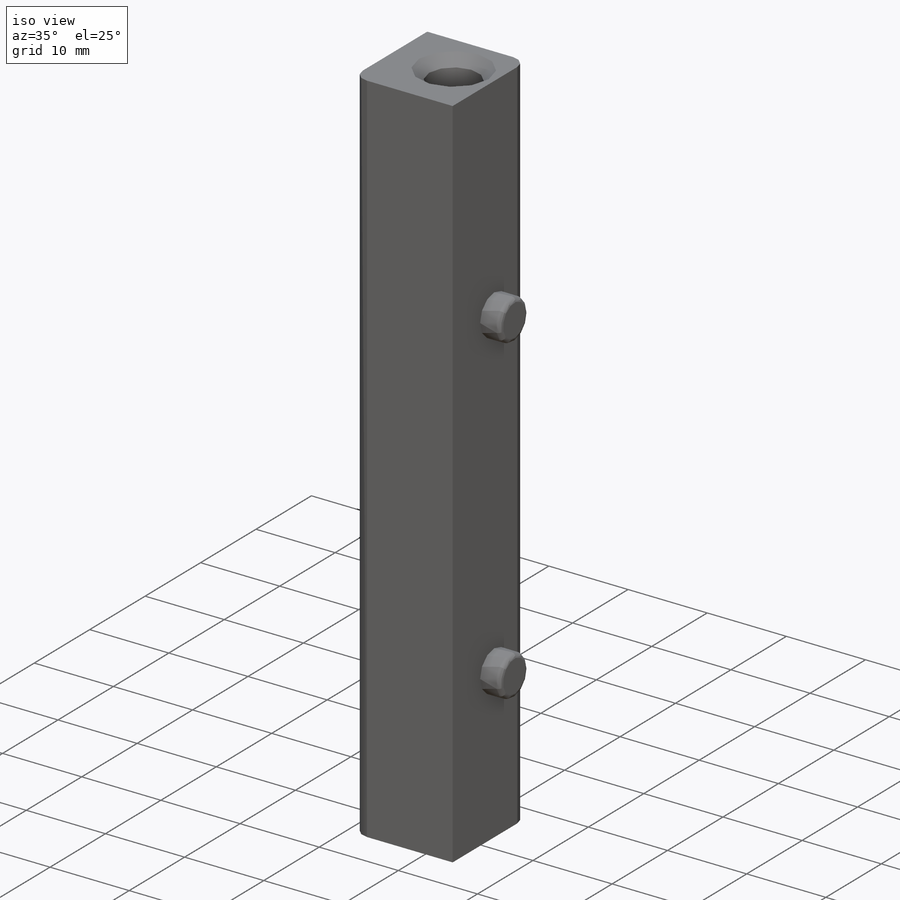
[diagram: iso view]
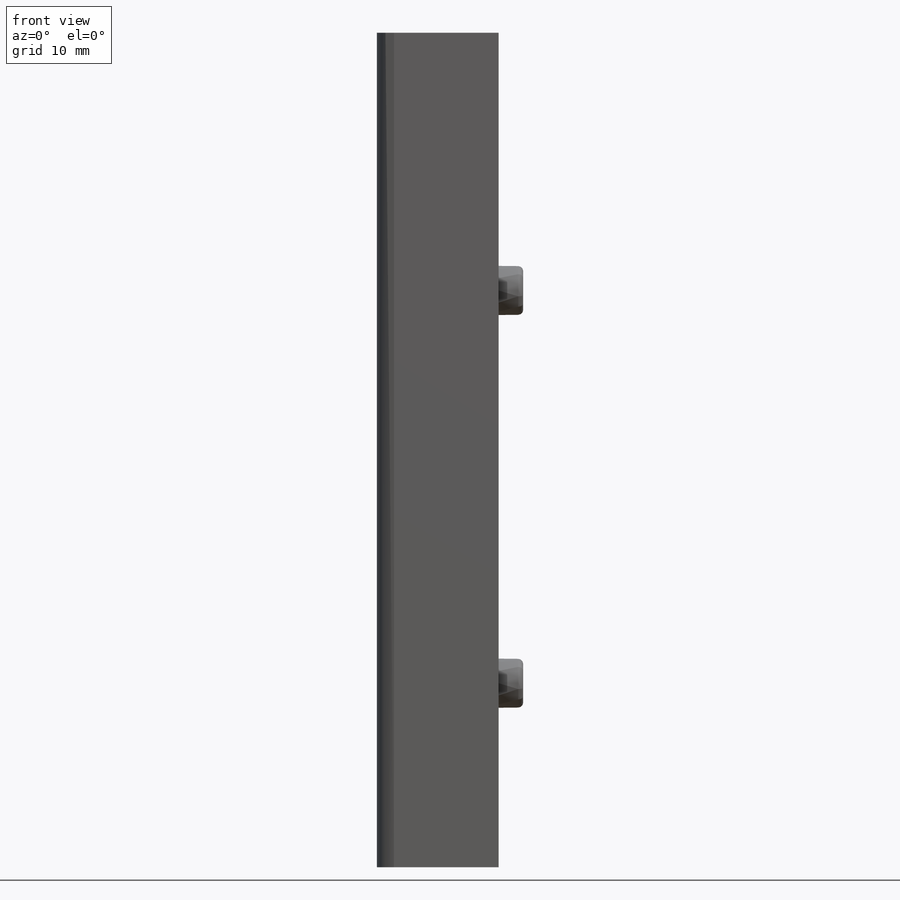
[diagram: front view]
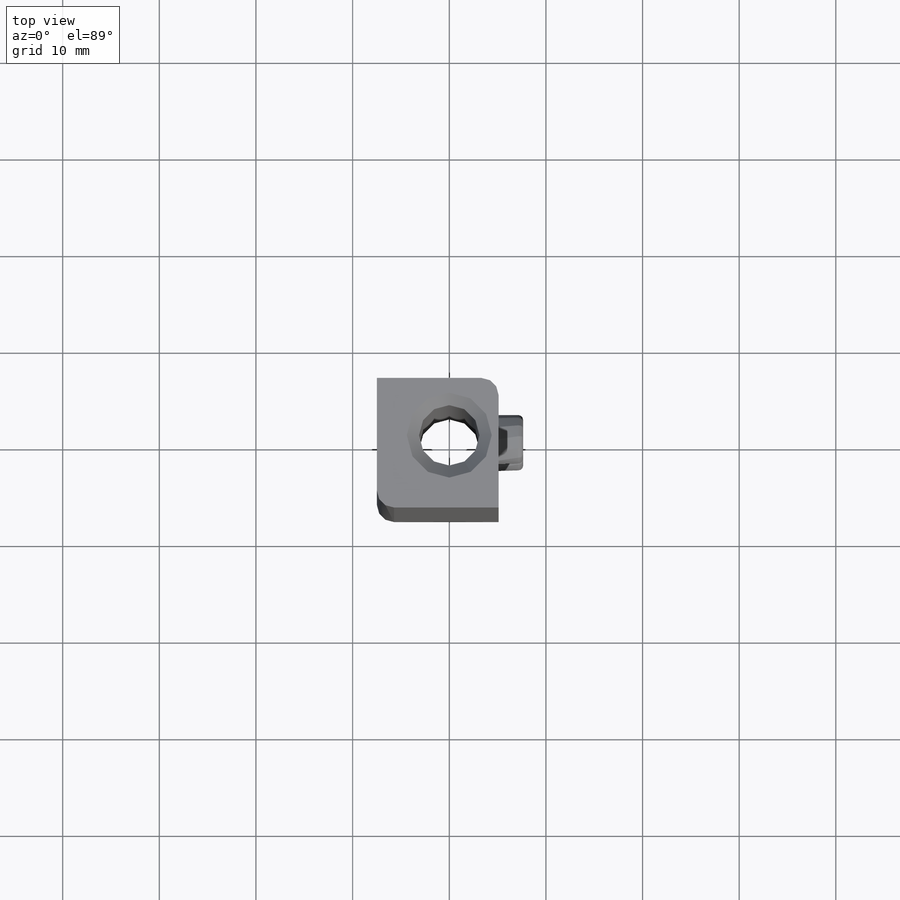
[diagram: top view]
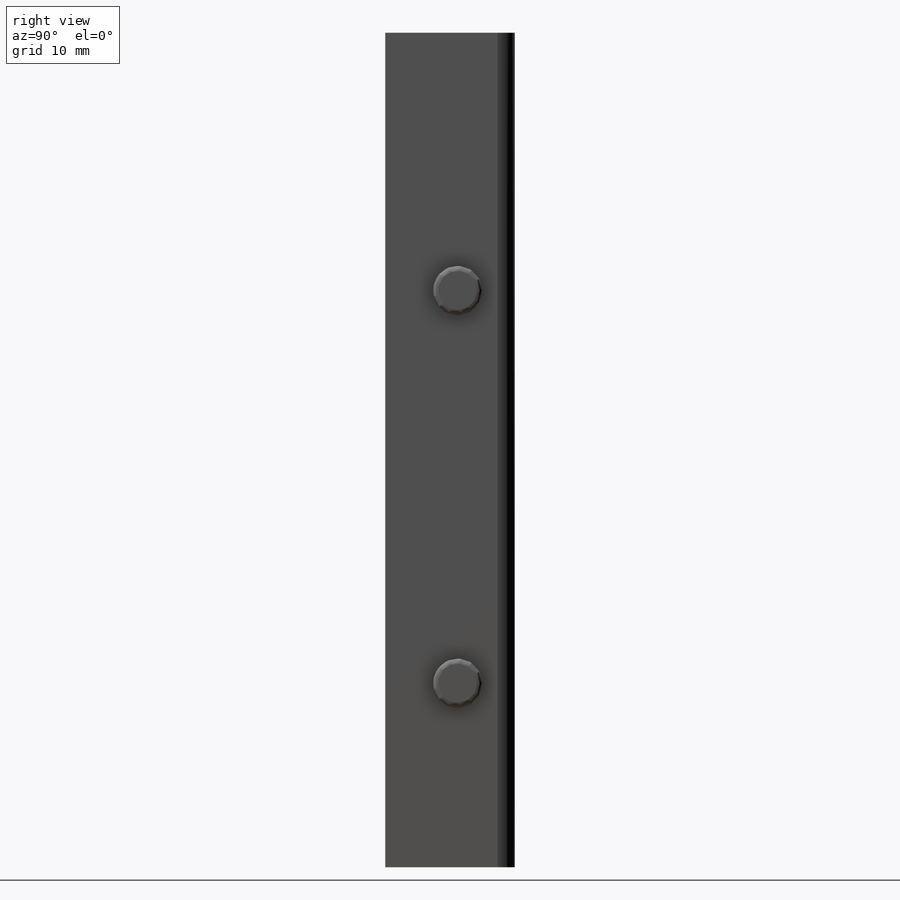
[diagram: right view]
SOLIDWORKS PART (.sldprt)
format: sldprt  version: not decoded by parser v0  size: 162,304 bytes
history: native  units: mm
features: sketch x3, extrude x2, fillet x2, material x1, cut_extrude x1, mirror x1, chamfer x1 (+11 scaffold rows collapsed)
feature tree (22):
  scaffold x11  (default folders/planes/origin — collapsed)
  material  "ABS"
  sketch  "Sketch1"  dims[c1.D1=13.4112mm c1.D2=12.5984mm c1.D3=5.9182mm c1.D4=5.1054mm c2.D3=5.9182mm c2.D4=5.1054mm]
  extrude  "Boss-Extrude1"  Depth=46.99mm
  sketch  "Sketch2"  dims[D1=6.2484mm]
  cut_extrude  "Cut-Extrude1"  [1 undecoded]
  sketch  "Sketch4"  dims[D1=5.08mm D2=20.32mm]
  extrude  "Boss-Extrude2"  Depth=2.54mm
  fillet  "Fillet2"  Radius=0.508mm
  mirror  "Mirror1"
  fillet  "Fillet1"  Radius=1.778mm
  chamfer  "Chamfer1"  Distance=1.27mm Angle=45deg
decode coverage: 8 of 10 modeling features carry decoded parameters
note: 1 parameter value undecoded
note: suppression state not decoded; provenance and decode notes live in map.json
